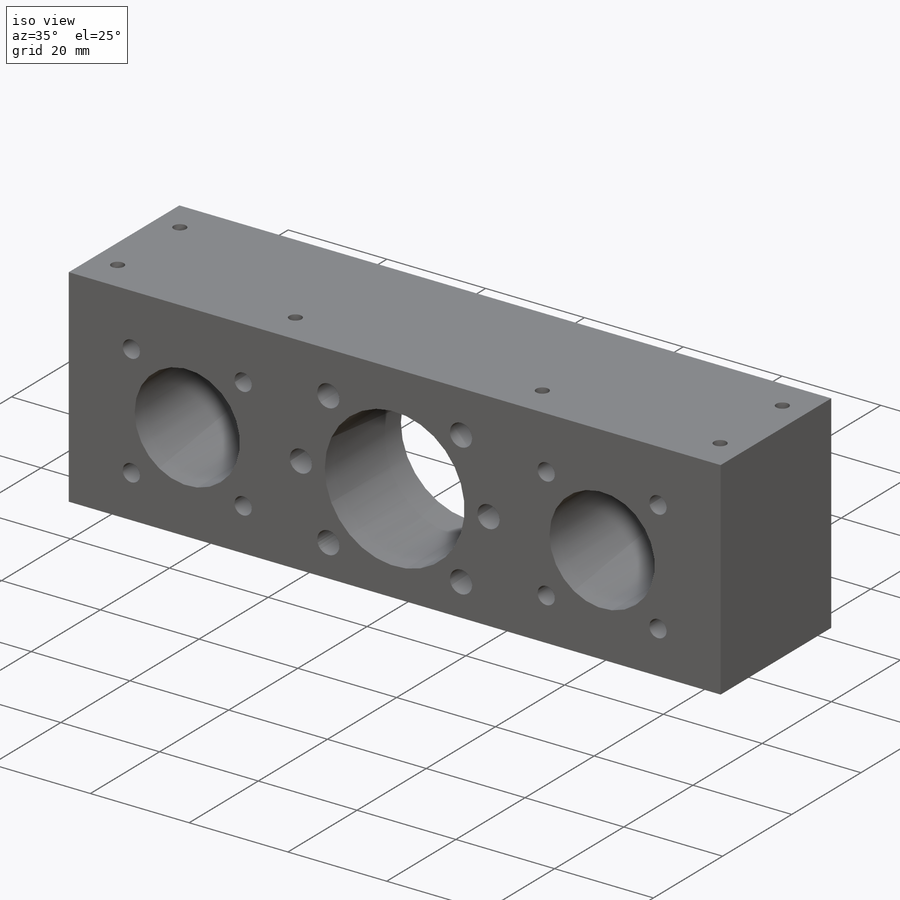
[diagram: iso view]
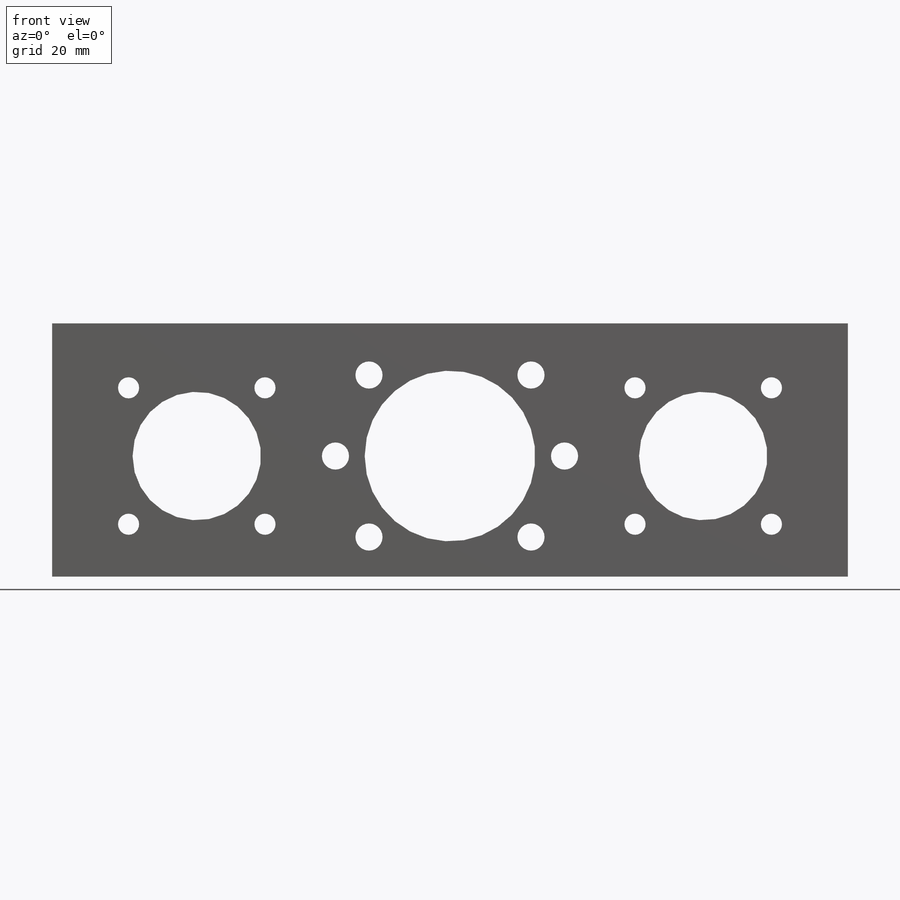
[diagram: front view]
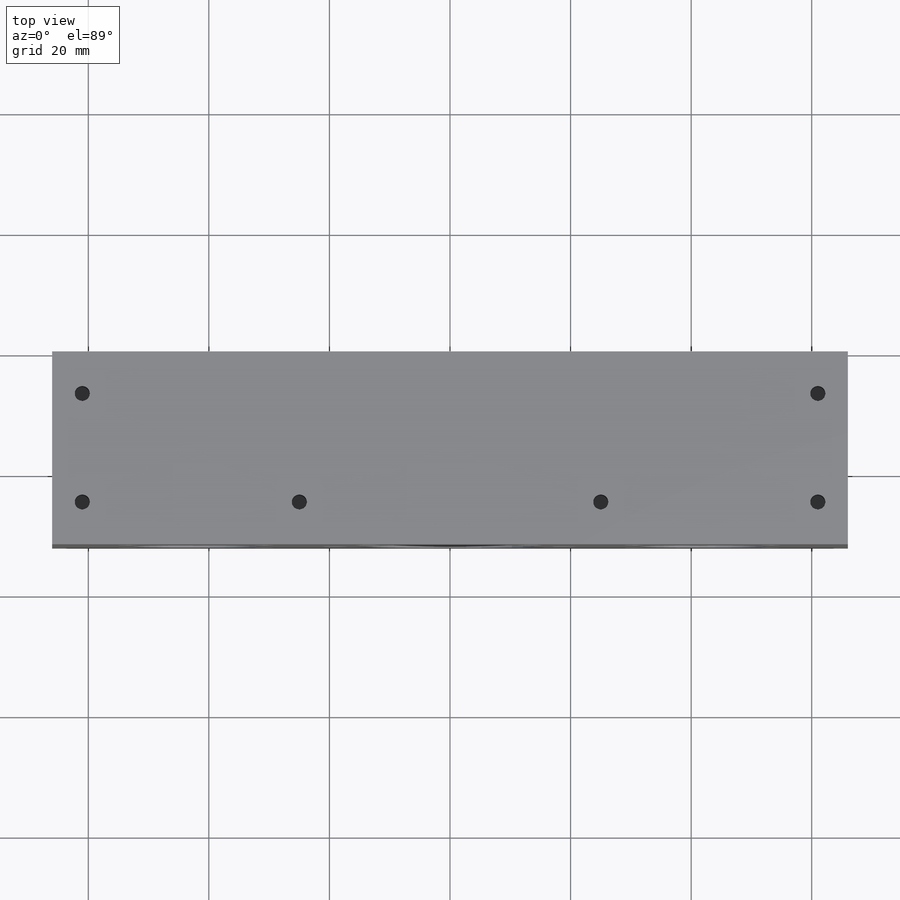
[diagram: top view]
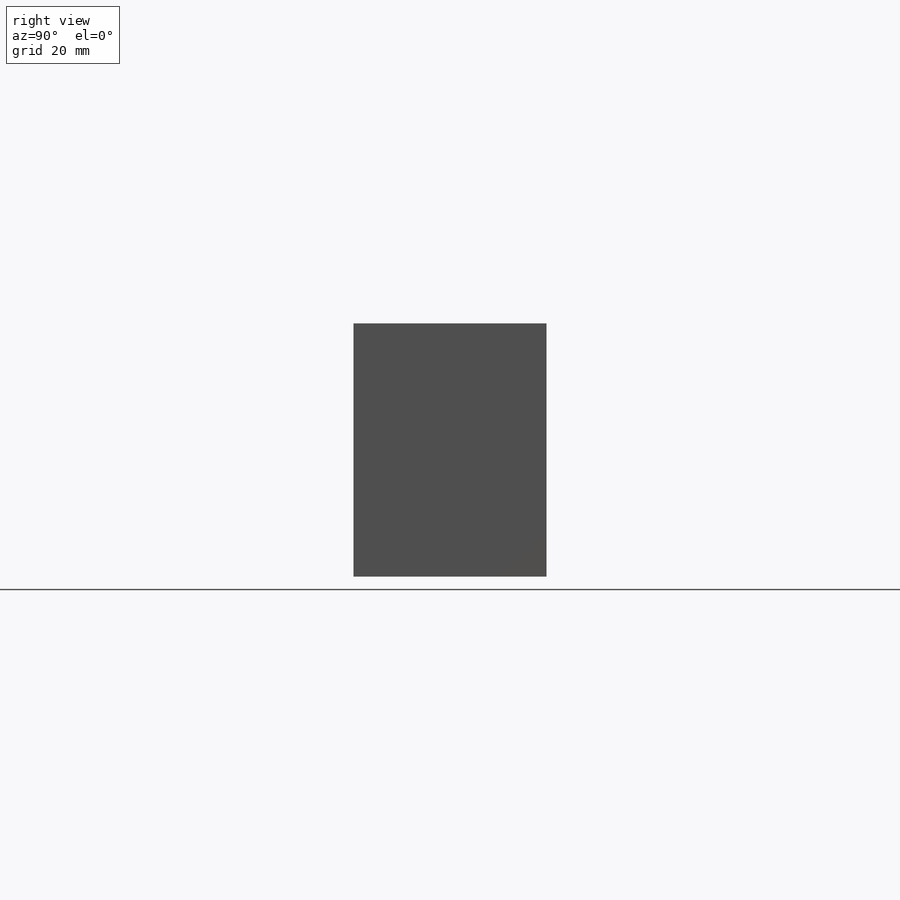
[diagram: right view]
SOLIDWORKS PART (.sldprt)
format: sldprt  version: not decoded by parser v0  size: 580,608 bytes
history: native  units: mm
features: sketch x8, cut_extrude x7, plane x3, material x1, extrude x1 (+10 scaffold rows collapsed)
feature tree (30):
  scaffold x10  (default folders/planes/origin — collapsed)
  material  "材质 <未指定>"
  plane  "前视基准面"
  plane  "上视基准面"
  plane  "右视基准面"
  sketch  "草图1"  dims[D1=42.0mm D2=132.0mm D3=66.0mm D4=22.0mm]
  extrude  "凸台-拉伸1"  Depth=32mm
  sketch  "草图2"  dims[D1=28.3mm D2=22.0mm]
  cut_extrude  "切除-拉伸1"  Depth=32mm
  sketch  "草图3"  dims[D1=21.3mm D2=21.3mm D3=42.0mm D4=42.0mm]
  cut_extrude  "切除-拉伸2"  Depth=32mm
  sketch  "草图6"
  cut_extrude  "切除-拉伸6"  Depth=1.5mm
  sketch  "草图7"  dims[c1.D1=48.0mm c1.D4=38.0mm c1.D5=4.5mm c1.D6=4.5mm c1.D11=4.5mm c1.D12=4.5mm c1.D13=4.5mm c1.D14=4.5mm c1.D18=32.0mm c1.D19=32.0mm c1.D20=3.5mm c1.D21=3.5mm c1.D22=3.5mm c1.D23=3.5mm c1.D24=3.5mm c1.D25=3.5mm c1.D26=3.5mm c1.D27=3.5mm c1.D2=20.0mm c1.D3=20.0mm c1.D7=19.0mm c2.D7=45.0deg c2.D8=48.0mm c3.D8=45.0deg c3.D9=19.0mm c4.D9=45.0deg c4.D10=48.0mm c5.D10=45.0deg c5.D4=32.4mm c5.D15=32.4mm c5.D16=32.4mm c5.D17=32.4mm]
  cut_extrude  "切除-拉伸8"  Depth=32mm
  sketch  "草图8"  dims[c1.D1=48.5mm c1.D2=20.2mm c1.D3=48.0mm c2.D3=~0.427436deg c3.D3=20.0mm]
  cut_extrude  "切除-拉伸9"  Depth=10mm
  sketch  "草图9"  dims[D3=42.5mm D6=42.5mm D1=32.5mm D2=32.5mm D4=32.5mm D5=32.5mm]
  cut_extrude  "切除-拉伸10"  Depth=6mm
  sketch  "草图10"  dims[c1.D1=2.5mm c1.D2=2.5mm c1.D3=2.5mm c1.D4=2.5mm c1.D5=2.5mm c1.D6=2.5mm c1.D7=2.5mm c1.D8=2.5mm c1.D9=2.5mm c1.D10=2.5mm c1.D12=2.5mm c1.D13=2.5mm c2.D5=25.0mm c2.D6=25.0mm c2.D7=7.0mm c2.D8=7.0mm c2.D9=5.0mm c2.D10=7.0mm c2.D11=5.0mm c2.D12=7.0mm c2.D13=20.0mm]
  cut_extrude  "切除-拉伸26"  Depth=10mm
decode coverage: 15 of 16 modeling features carry decoded parameters
note: ~ marks probable driven/reference dimensions
note: suppression state not decoded; provenance and decode notes live in map.json
